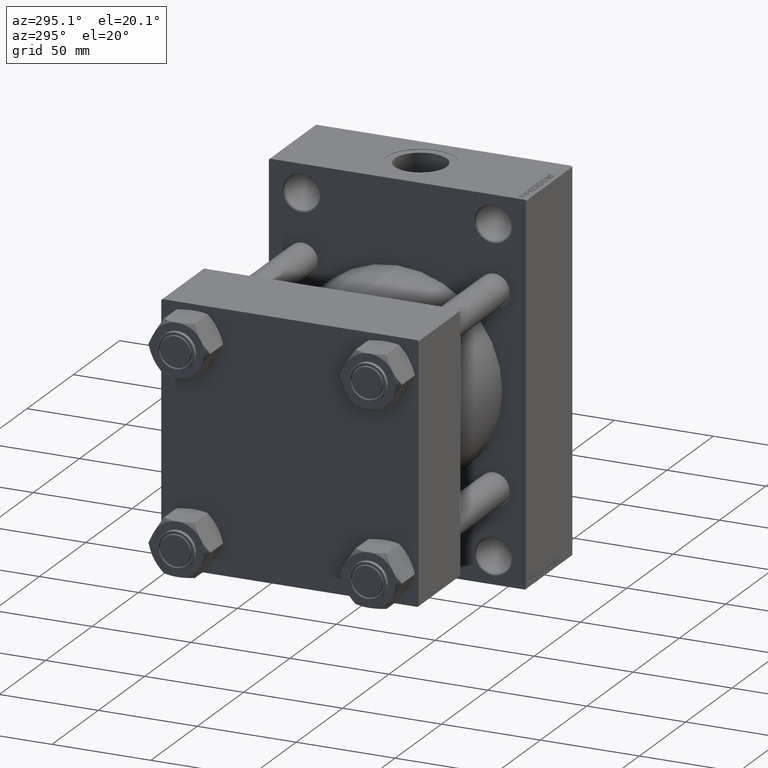
[diagram: clean part render]
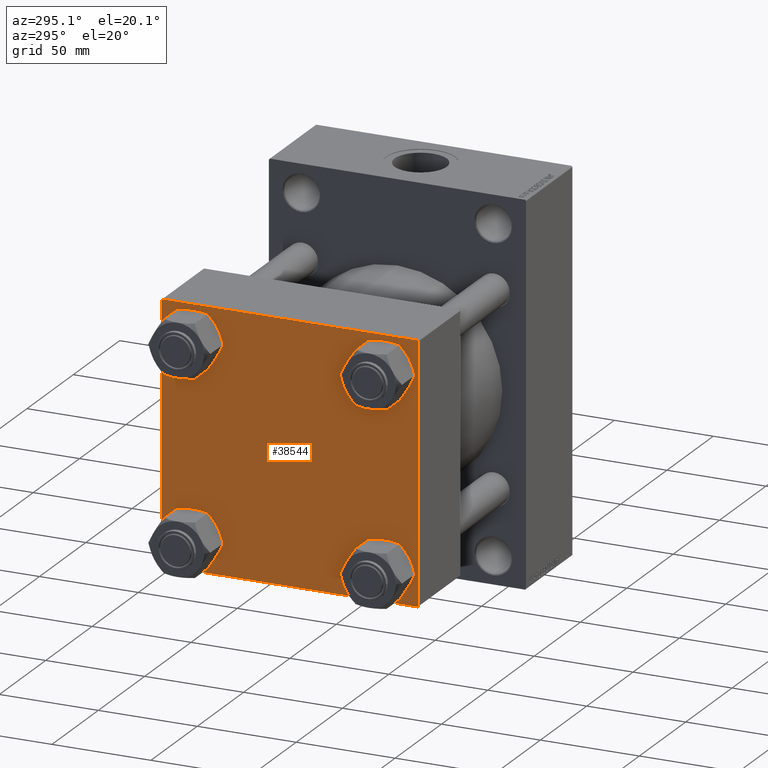
[diagram: same view with one face highlighted and labeled with its STEP entity id]
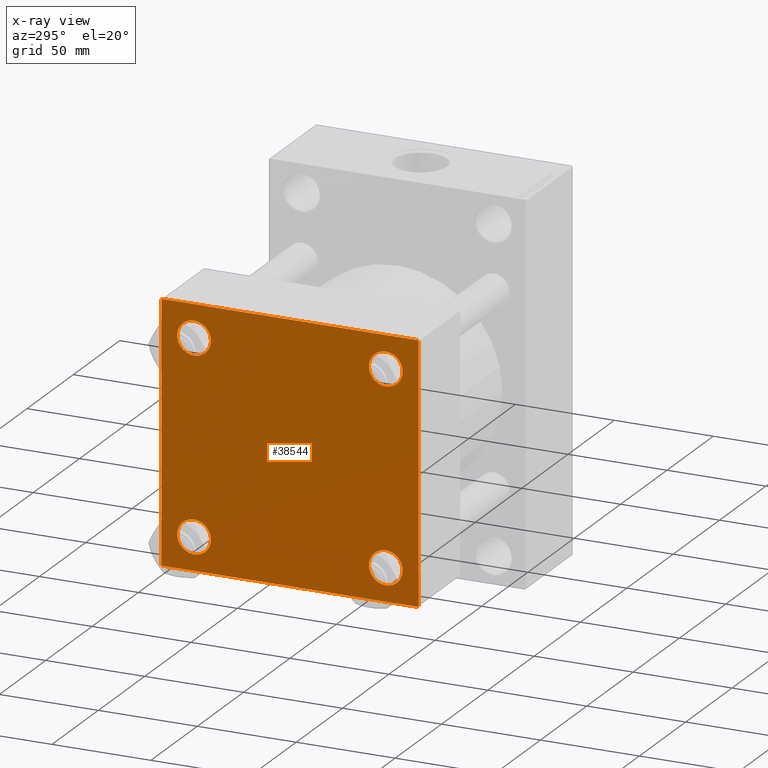
[diagram: x-ray of the same camera — body ghosted, the highlighted face saturated]
A machine part, auxiliary view. The second image highlights one B-rep face of the part: STEP entity #38544.
The next image is the same camera in x-ray: the body ghosted, the highlighted face saturated — about 0% of this face is hidden behind the body in this view.
In plain terms, the highlighted planar face has unit normal (-1, 0, 0).
Its self-contained STEP definition (entity closure, byte-faithful):
#484 = VERTEX_POINT ( 'NONE', #32929 ) ;
#700 = DIRECTION ( 'NONE',  ( 1.000000000000000000, -0.000000000000000000, 0.000000000000000000 ) ) ;
#728 = VERTEX_POINT ( 'NONE', #42787 ) ;
#2235 = EDGE_CURVE ( 'NONE', #14529, #29768, #16858, .T. ) ;
#2509 = DIRECTION ( 'NONE',  ( 1.000000000000000000, -0.000000000000000000, 0.000000000000000000 ) ) ;
#2754 = ORIENTED_EDGE ( 'NONE', *, *, #2235, .T. ) ;
#2855 = CARTESIAN_POINT ( 'NONE',  ( 0.000000000000000000, -65.00000000000000000, 64.50000000000000000 ) ) ;
#3601 = DIRECTION ( 'NONE',  ( 1.000000000000000000, -0.000000000000000000, 0.000000000000000000 ) ) ;
#3612 = EDGE_CURVE ( 'NONE', #33846, #5329, #15122, .T. ) ;
#4087 = LINE ( 'NONE', #18803, #46921 ) ;
#4938 = EDGE_LOOP ( 'NONE', ( #17905, #42276 ) ) ;
#4939 = CARTESIAN_POINT ( 'NONE',  ( 0.000000000000000000, -64.75000000000176215, -64.74999999999816680 ) ) ;
#5252 = CARTESIAN_POINT ( 'NONE',  ( 0.000000000000000000, -48.44999999999999574, 56.95000000000003837 ) ) ;
#5329 = VERTEX_POINT ( 'NONE', #40371 ) ;
#5394 = DIRECTION ( 'NONE',  ( 0.000000000000000000, -1.000000000000000000, -1.067522139062650425E-16 ) ) ;
#5420 = CARTESIAN_POINT ( 'NONE',  ( 0.000000000000000000, 65.00000000000000000, 65.00000000000001421 ) ) ;
#6246 = EDGE_LOOP ( 'NONE', ( #45033, #40679 ) ) ;
#6332 = VECTOR ( 'NONE', #28993, 1000.000000000000000 ) ;
#6572 = AXIS2_PLACEMENT_3D ( 'NONE', #45317, #31040, #34897 ) ;
#6657 = DIRECTION ( 'NONE',  ( 0.000000000000000000, 0.000000000000000000, 1.000000000000000000 ) ) ;
#6718 = VERTEX_POINT ( 'NONE', #27705 ) ;
#7468 = CARTESIAN_POINT ( 'NONE',  ( 0.000000000000000000, -48.44999999999999574, -48.45000000000003126 ) ) ;
#7786 = PLANE ( 'NONE',  #9966 ) ;
#8225 = DIRECTION ( 'NONE',  ( 1.000000000000000000, -0.000000000000000000, 0.000000000000000000 ) ) ;
#8348 = CIRCLE ( 'NONE', #28399, 8.500000000000007105 ) ;
#9348 = DIRECTION ( 'NONE',  ( -0.000000000000000000, -0.7071067811865474617, -0.7071067811865474617 ) ) ;
#9624 = VECTOR ( 'NONE', #5394, 1000.000000000000000 ) ;
#9966 = AXIS2_PLACEMENT_3D ( 'NONE', #14077, #26123, #28785 ) ;
#10143 = EDGE_CURVE ( 'NONE', #484, #728, #37814, .T. ) ;
#10433 = DIRECTION ( 'NONE',  ( 0.000000000000000000, 0.000000000000000000, 1.000000000000000000 ) ) ;
#10478 = CARTESIAN_POINT ( 'NONE',  ( 0.000000000000000000, 64.49999999999997158, 65.00000000000001421 ) ) ;
#10707 = ORIENTED_EDGE ( 'NONE', *, *, #40242, .T. ) ;
#12063 = ORIENTED_EDGE ( 'NONE', *, *, #13087, .T. ) ;
#12388 = EDGE_LOOP ( 'NONE', ( #12419, #2754 ) ) ;
#12419 = ORIENTED_EDGE ( 'NONE', *, *, #26389, .T. ) ;
#13087 = EDGE_CURVE ( 'NONE', #29057, #21217, #18145, .T. ) ;
#13091 = CARTESIAN_POINT ( 'NONE',  ( 0.000000000000000000, -64.49999999999994316, -65.00000000000000000 ) ) ;
#13128 = LINE ( 'NONE', #4939, #38512 ) ;
#13720 = DIRECTION ( 'NONE',  ( 0.000000000000000000, 0.000000000000000000, 1.000000000000000000 ) ) ;
#14077 = CARTESIAN_POINT ( 'NONE',  ( 0.000000000000000000, 0.000000000000000000, 0.000000000000000000 ) ) ;
#14282 = EDGE_CURVE ( 'NONE', #36850, #21762, #36403, .T. ) ;
#14476 = CARTESIAN_POINT ( 'NONE',  ( 0.000000000000000000, -48.44999999999999574, 39.95000000000001705 ) ) ;
#14497 = CARTESIAN_POINT ( 'NONE',  ( 0.000000000000000000, 65.00000000000000000, -64.49999999999995737 ) ) ;
#14529 = VERTEX_POINT ( 'NONE', #14476 ) ;
#14532 = ORIENTED_EDGE ( 'NONE', *, *, #44095, .F. ) ;
#14805 = FACE_OUTER_BOUND ( 'NONE', #30819, .T. ) ;
#15122 = LINE ( 'NONE', #29829, #36159 ) ;
#15201 = CARTESIAN_POINT ( 'NONE',  ( 0.000000000000000000, -64.49999999999997158, 65.00000000000000000 ) ) ;
#15645 = CARTESIAN_POINT ( 'NONE',  ( 0.000000000000000000, 48.45000000000000995, -56.95000000000002416 ) ) ;
#16041 = LINE ( 'NONE', #5420, #30839 ) ;
#16210 = AXIS2_PLACEMENT_3D ( 'NONE', #35776, #21057, #10433 ) ;
#16270 = VERTEX_POINT ( 'NONE', #15645 ) ;
#16502 = DIRECTION ( 'NONE',  ( 0.000000000000000000, -0.7071067811865279218, 0.7071067811865671127 ) ) ;
#16586 = CARTESIAN_POINT ( 'NONE',  ( 0.000000000000000000, 64.74999999999997158, -64.74999999999997158 ) ) ;
#16627 = VERTEX_POINT ( 'NONE', #13091 ) ;
#16858 = CIRCLE ( 'NONE', #25360, 8.500000000000007105 ) ;
#17136 = LINE ( 'NONE', #31857, #47738 ) ;
#17757 = VERTEX_POINT ( 'NONE', #15201 ) ;
#17905 = ORIENTED_EDGE ( 'NONE', *, *, #29333, .T. ) ;
#18145 = LINE ( 'NONE', #26094, #6332 ) ;
#18659 = FACE_BOUND ( 'NONE', #4938, .T. ) ;
#18803 = CARTESIAN_POINT ( 'NONE',  ( 0.000000000000000000, 64.74999999999998579, 64.74999999999998579 ) ) ;
#19371 = CIRCLE ( 'NONE', #29374, 8.500000000000007105 ) ;
#19633 = CARTESIAN_POINT ( 'NONE',  ( 0.000000000000000000, 65.00000000000000000, -64.99999999999998579 ) ) ;
#20673 = ORIENTED_EDGE ( 'NONE', *, *, #3612, .F. ) ;
#21057 = DIRECTION ( 'NONE',  ( 1.000000000000000000, -0.000000000000000000, 0.000000000000000000 ) ) ;
#21217 = VERTEX_POINT ( 'NONE', #14497 ) ;
#21762 = VERTEX_POINT ( 'NONE', #36759 ) ;
#23731 = LINE ( 'NONE', #19633, #9624 ) ;
#23819 = EDGE_LOOP ( 'NONE', ( #10707, #46666 ) ) ;
#24428 = ORIENTED_EDGE ( 'NONE', *, *, #43177, .T. ) ;
#24763 = CARTESIAN_POINT ( 'NONE',  ( 0.000000000000000000, 48.45000000000000995, 48.45000000000001705 ) ) ;
#25210 = CARTESIAN_POINT ( 'NONE',  ( 0.000000000000000000, -48.44999999999999574, -56.95000000000003837 ) ) ;
#25326 = EDGE_CURVE ( 'NONE', #6718, #16627, #23731, .T. ) ;
#25360 = AXIS2_PLACEMENT_3D ( 'NONE', #29401, #3601, #13720 ) ;
#25454 = AXIS2_PLACEMENT_3D ( 'NONE', #24763, #39717, #6657 ) ;
#25882 = AXIS2_PLACEMENT_3D ( 'NONE', #36032, #2509, #39420 ) ;
#26094 = CARTESIAN_POINT ( 'NONE',  ( 0.000000000000000000, 65.00000000000000000, 65.00000000000001421 ) ) ;
#26123 = DIRECTION ( 'NONE',  ( -1.000000000000000000, 0.000000000000000000, -0.000000000000000000 ) ) ;
#26208 = DIRECTION ( 'NONE',  ( 0.000000000000000000, 0.000000000000000000, -1.000000000000000000 ) ) ;
#26347 = VECTOR ( 'NONE', #9348, 1000.000000000000114 ) ;
#26389 = EDGE_CURVE ( 'NONE', #29768, #14529, #43627, .T. ) ;
#27705 = CARTESIAN_POINT ( 'NONE',  ( 0.000000000000000000, 64.49999999999997158, -64.99999999999998579 ) ) ;
#27913 = AXIS2_PLACEMENT_3D ( 'NONE', #39565, #39326, #46819 ) ;
#28399 = AXIS2_PLACEMENT_3D ( 'NONE', #7468, #700, #45106 ) ;
#28785 = DIRECTION ( 'NONE',  ( -0.000000000000000000, 0.000000000000000000, 1.000000000000000000 ) ) ;
#28993 = DIRECTION ( 'NONE',  ( 0.000000000000000000, 0.000000000000000000, -1.000000000000000000 ) ) ;
#29057 = VERTEX_POINT ( 'NONE', #42943 ) ;
#29333 = EDGE_CURVE ( 'NONE', #37989, #16270, #29730, .T. ) ;
#29374 = AXIS2_PLACEMENT_3D ( 'NONE', #41528, #8225, #33802 ) ;
#29401 = CARTESIAN_POINT ( 'NONE',  ( 0.000000000000000000, -48.44999999999999574, 48.45000000000003126 ) ) ;
#29730 = CIRCLE ( 'NONE', #6572, 8.500000000000007105 ) ;
#29768 = VERTEX_POINT ( 'NONE', #5252 ) ;
#29829 = CARTESIAN_POINT ( 'NONE',  ( 0.000000000000000000, -65.00000000000000000, 65.00000000000000000 ) ) ;
#30471 = ORIENTED_EDGE ( 'NONE', *, *, #37524, .T. ) ;
#30819 = EDGE_LOOP ( 'NONE', ( #12063, #32671, #45946, #24428, #20673, #30471, #14532, #44991 ) ) ;
#30839 = VECTOR ( 'NONE', #41872, 1000.000000000000000 ) ;
#31040 = DIRECTION ( 'NONE',  ( 1.000000000000000000, -0.000000000000000000, 0.000000000000000000 ) ) ;
#31857 = CARTESIAN_POINT ( 'NONE',  ( -0.000000000000000000, -64.74999999999819522, 64.75000000000179057 ) ) ;
#32279 = LINE ( 'NONE', #16586, #26347 ) ;
#32418 = FACE_BOUND ( 'NONE', #12388, .T. ) ;
#32671 = ORIENTED_EDGE ( 'NONE', *, *, #47753, .T. ) ;
#32929 = CARTESIAN_POINT ( 'NONE',  ( 0.000000000000000000, 48.45000000000000995, 39.95000000000000284 ) ) ;
#33368 = FACE_BOUND ( 'NONE', #6246, .T. ) ;
#33517 = DIRECTION ( 'NONE',  ( 0.000000000000000000, 0.7071067811865474617, -0.7071067811865474617 ) ) ;
#33802 = DIRECTION ( 'NONE',  ( 0.000000000000000000, 0.000000000000000000, 1.000000000000000000 ) ) ;
#33846 = VERTEX_POINT ( 'NONE', #2855 ) ;
#33997 = CARTESIAN_POINT ( 'NONE',  ( 0.000000000000000000, 48.45000000000000995, -39.95000000000000284 ) ) ;
#34897 = DIRECTION ( 'NONE',  ( 0.000000000000000000, 0.000000000000000000, 1.000000000000000000 ) ) ;
#35776 = CARTESIAN_POINT ( 'NONE',  ( 0.000000000000000000, 48.45000000000000995, 48.45000000000001705 ) ) ;
#36032 = CARTESIAN_POINT ( 'NONE',  ( 0.000000000000000000, -48.44999999999999574, 48.45000000000003126 ) ) ;
#36159 = VECTOR ( 'NONE', #26208, 1000.000000000000000 ) ;
#36223 = CIRCLE ( 'NONE', #25454, 8.500000000000007105 ) ;
#36403 = CIRCLE ( 'NONE', #27913, 8.500000000000007105 ) ;
#36459 = EDGE_CURVE ( 'NONE', #21762, #36850, #8348, .T. ) ;
#36550 = EDGE_CURVE ( 'NONE', #45085, #29057, #4087, .T. ) ;
#36759 = CARTESIAN_POINT ( 'NONE',  ( 0.000000000000000000, -48.44999999999999574, -39.95000000000001705 ) ) ;
#36850 = VERTEX_POINT ( 'NONE', #25210 ) ;
#37524 = EDGE_CURVE ( 'NONE', #33846, #17757, #17136, .T. ) ;
#37814 = CIRCLE ( 'NONE', #16210, 8.500000000000007105 ) ;
#37989 = VERTEX_POINT ( 'NONE', #33997 ) ;
#38512 = VECTOR ( 'NONE', #16502, 1000.000000000000000 ) ;
#38544 = ADVANCED_FACE ( 'NONE', ( #32418, #33368, #18659, #47155, #14805 ), #7786, .T. ) ;
#39326 = DIRECTION ( 'NONE',  ( 1.000000000000000000, -0.000000000000000000, 0.000000000000000000 ) ) ;
#39420 = DIRECTION ( 'NONE',  ( 0.000000000000000000, 0.000000000000000000, 1.000000000000000000 ) ) ;
#39565 = CARTESIAN_POINT ( 'NONE',  ( 0.000000000000000000, -48.44999999999999574, -48.45000000000003126 ) ) ;
#39717 = DIRECTION ( 'NONE',  ( 1.000000000000000000, -0.000000000000000000, 0.000000000000000000 ) ) ;
#40242 = EDGE_CURVE ( 'NONE', #728, #484, #36223, .T. ) ;
#40371 = CARTESIAN_POINT ( 'NONE',  ( 0.000000000000000000, -65.00000000000000000, -64.49999999999991473 ) ) ;
#40679 = ORIENTED_EDGE ( 'NONE', *, *, #14282, .T. ) ;
#41528 = CARTESIAN_POINT ( 'NONE',  ( 0.000000000000000000, 48.45000000000000995, -48.45000000000001705 ) ) ;
#41872 = DIRECTION ( 'NONE',  ( 0.000000000000000000, -1.000000000000000000, -1.067522139062650425E-16 ) ) ;
#42276 = ORIENTED_EDGE ( 'NONE', *, *, #46371, .T. ) ;
#42787 = CARTESIAN_POINT ( 'NONE',  ( 0.000000000000000000, 48.45000000000000995, 56.95000000000002416 ) ) ;
#42943 = CARTESIAN_POINT ( 'NONE',  ( 0.000000000000000000, 65.00000000000000000, 64.49999999999998579 ) ) ;
#43177 = EDGE_CURVE ( 'NONE', #16627, #5329, #13128, .T. ) ;
#43627 = CIRCLE ( 'NONE', #25882, 8.500000000000007105 ) ;
#44095 = EDGE_CURVE ( 'NONE', #45085, #17757, #16041, .T. ) ;
#44991 = ORIENTED_EDGE ( 'NONE', *, *, #36550, .T. ) ;
#45033 = ORIENTED_EDGE ( 'NONE', *, *, #36459, .T. ) ;
#45085 = VERTEX_POINT ( 'NONE', #10478 ) ;
#45106 = DIRECTION ( 'NONE',  ( 0.000000000000000000, 0.000000000000000000, 1.000000000000000000 ) ) ;
#45317 = CARTESIAN_POINT ( 'NONE',  ( 0.000000000000000000, 48.45000000000000995, -48.45000000000001705 ) ) ;
#45946 = ORIENTED_EDGE ( 'NONE', *, *, #25326, .T. ) ;
#46371 = EDGE_CURVE ( 'NONE', #16270, #37989, #19371, .T. ) ;
#46594 = DIRECTION ( 'NONE',  ( -0.000000000000000000, 0.7071067811865672237, 0.7071067811865279218 ) ) ;
#46666 = ORIENTED_EDGE ( 'NONE', *, *, #10143, .T. ) ;
#46819 = DIRECTION ( 'NONE',  ( 0.000000000000000000, 0.000000000000000000, 1.000000000000000000 ) ) ;
#46921 = VECTOR ( 'NONE', #33517, 1000.000000000000114 ) ;
#47155 = FACE_BOUND ( 'NONE', #23819, .T. ) ;
#47738 = VECTOR ( 'NONE', #46594, 1000.000000000000000 ) ;
#47753 = EDGE_CURVE ( 'NONE', #21217, #6718, #32279, .T. ) ;